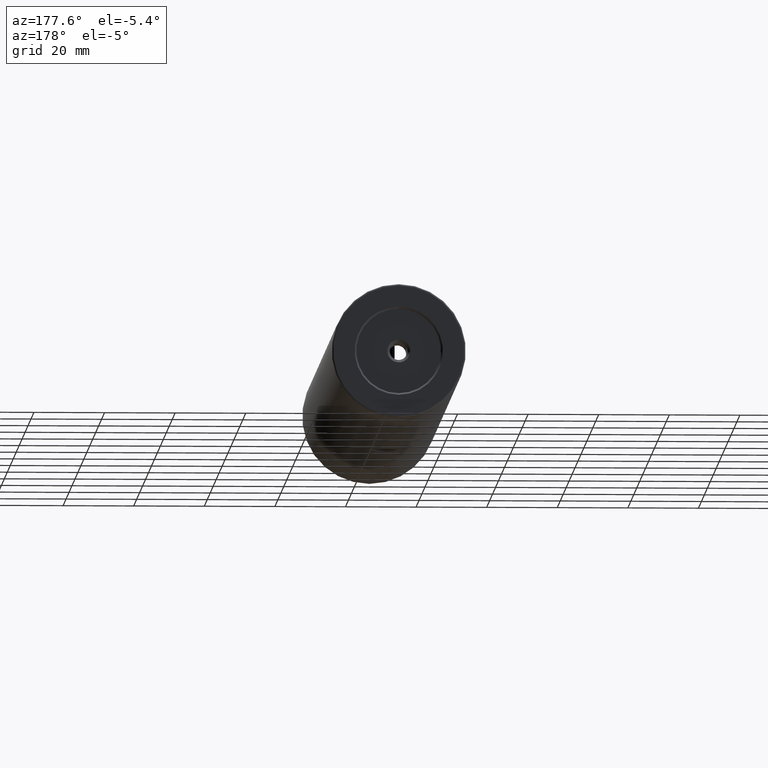
[diagram: clean part render]
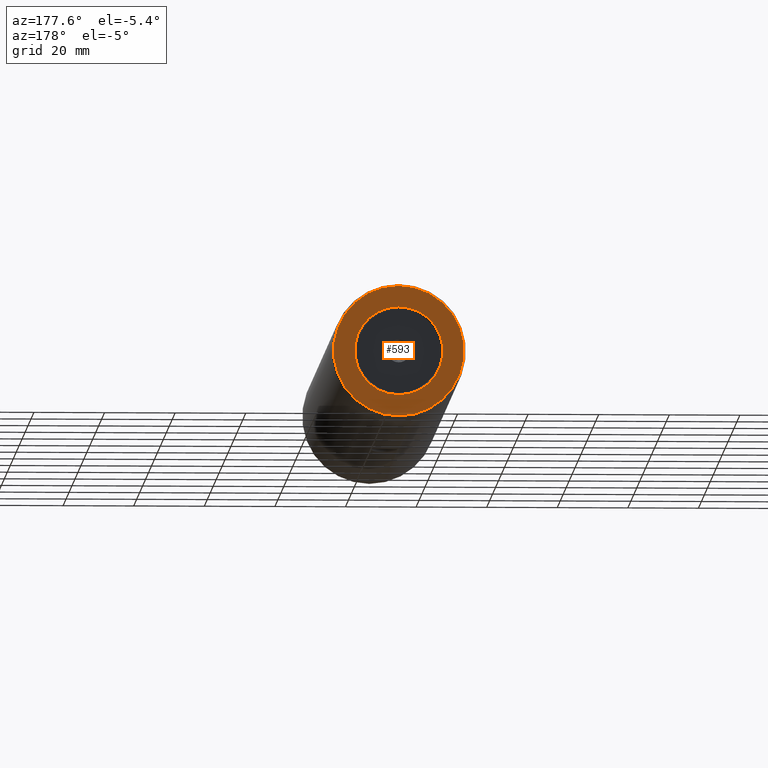
[diagram: same view with one face highlighted and labeled with its STEP entity id]
A machine part, auxiliary view. The second image highlights one B-rep face of the part: STEP entity #593.
In plain terms, the highlighted planar face has unit normal (0, 1, 0).
Its self-contained STEP definition (entity closure, byte-faithful):
#18 = DIRECTION ( 'NONE',  ( 0.0000000000000000000, 0.0000000000000000000, 1.000000000000000000 ) ) ;
#23 = DIRECTION ( 'NONE',  ( 0.0000000000000000000, 1.000000000000000000, 0.0000000000000000000 ) ) ;
#61 = CARTESIAN_POINT ( 'NONE',  ( -85.22679983354142053, 95.73866000832572354, 400.0000000000000000 ) ) ;
#116 = AXIS2_PLACEMENT_3D ( 'NONE', #1014, #377, #784 ) ;
#141 = VERTEX_POINT ( 'NONE', #495 ) ;
#178 = CARTESIAN_POINT ( 'NONE',  ( -85.22679983354142053, 95.73866000832572354, 400.0000000000000000 ) ) ;
#215 = CIRCLE ( 'NONE', #787, 18.50000000000001776 ) ;
#247 = DIRECTION ( 'NONE',  ( 0.0000000000000000000, 1.000000000000000000, 0.0000000000000000000 ) ) ;
#249 = VERTEX_POINT ( 'NONE', #351 ) ;
#261 = FACE_BOUND ( 'NONE', #753, .T. ) ;
#294 = EDGE_LOOP ( 'NONE', ( #747, #414 ) ) ;
#328 = CARTESIAN_POINT ( 'NONE',  ( -85.22679983354142053, 95.73866000832572354, 381.5000000000000000 ) ) ;
#351 = CARTESIAN_POINT ( 'NONE',  ( -85.22679983354142053, 95.73866000832572354, 387.5000000000000000 ) ) ;
#373 = AXIS2_PLACEMENT_3D ( 'NONE', #178, #23, #671 ) ;
#377 = DIRECTION ( 'NONE',  ( 0.0000000000000000000, 1.000000000000000000, 0.0000000000000000000 ) ) ;
#380 = EDGE_CURVE ( 'NONE', #988, #800, #215, .T. ) ;
#402 = CARTESIAN_POINT ( 'NONE',  ( -85.22679983354142053, 95.73866000832572354, 400.0000000000000000 ) ) ;
#414 = ORIENTED_EDGE ( 'NONE', *, *, #380, .T. ) ;
#417 = PLANE ( 'NONE',  #373 ) ;
#419 = DIRECTION ( 'NONE',  ( 0.0000000000000000000, 1.000000000000000000, 0.0000000000000000000 ) ) ;
#495 = CARTESIAN_POINT ( 'NONE',  ( -85.22679983354142053, 95.73866000832572354, 412.5000000000000568 ) ) ;
#504 = DIRECTION ( 'NONE',  ( 0.0000000000000000000, 0.0000000000000000000, 1.000000000000000000 ) ) ;
#521 = DIRECTION ( 'NONE',  ( 0.0000000000000000000, 1.000000000000000000, 0.0000000000000000000 ) ) ;
#579 = ORIENTED_EDGE ( 'NONE', *, *, #667, .F. ) ;
#593 = ADVANCED_FACE ( 'NONE', ( #261, #797 ), #417, .T. ) ;
#606 = DIRECTION ( 'NONE',  ( 0.0000000000000000000, 0.0000000000000000000, 1.000000000000000000 ) ) ;
#667 = EDGE_CURVE ( 'NONE', #141, #249, #949, .T. ) ;
#670 = CIRCLE ( 'NONE', #828, 12.50000000000001066 ) ;
#671 = DIRECTION ( 'NONE',  ( 0.0000000000000000000, -0.0000000000000000000, 1.000000000000000000 ) ) ;
#696 = AXIS2_PLACEMENT_3D ( 'NONE', #971, #419, #504 ) ;
#747 = ORIENTED_EDGE ( 'NONE', *, *, #748, .T. ) ;
#748 = EDGE_CURVE ( 'NONE', #800, #988, #1001, .T. ) ;
#753 = EDGE_LOOP ( 'NONE', ( #579, #972 ) ) ;
#764 = CARTESIAN_POINT ( 'NONE',  ( -85.22679983354142053, 95.73866000832572354, 418.5000000000000568 ) ) ;
#784 = DIRECTION ( 'NONE',  ( 0.0000000000000000000, 0.0000000000000000000, 1.000000000000000000 ) ) ;
#787 = AXIS2_PLACEMENT_3D ( 'NONE', #61, #521, #606 ) ;
#797 = FACE_OUTER_BOUND ( 'NONE', #294, .T. ) ;
#800 = VERTEX_POINT ( 'NONE', #764 ) ;
#828 = AXIS2_PLACEMENT_3D ( 'NONE', #402, #247, #18 ) ;
#874 = EDGE_CURVE ( 'NONE', #249, #141, #670, .T. ) ;
#949 = CIRCLE ( 'NONE', #696, 12.50000000000001066 ) ;
#971 = CARTESIAN_POINT ( 'NONE',  ( -85.22679983354142053, 95.73866000832572354, 400.0000000000000000 ) ) ;
#972 = ORIENTED_EDGE ( 'NONE', *, *, #874, .F. ) ;
#988 = VERTEX_POINT ( 'NONE', #328 ) ;
#1001 = CIRCLE ( 'NONE', #116, 18.50000000000001776 ) ;
#1014 = CARTESIAN_POINT ( 'NONE',  ( -85.22679983354142053, 95.73866000832572354, 400.0000000000000000 ) ) ;